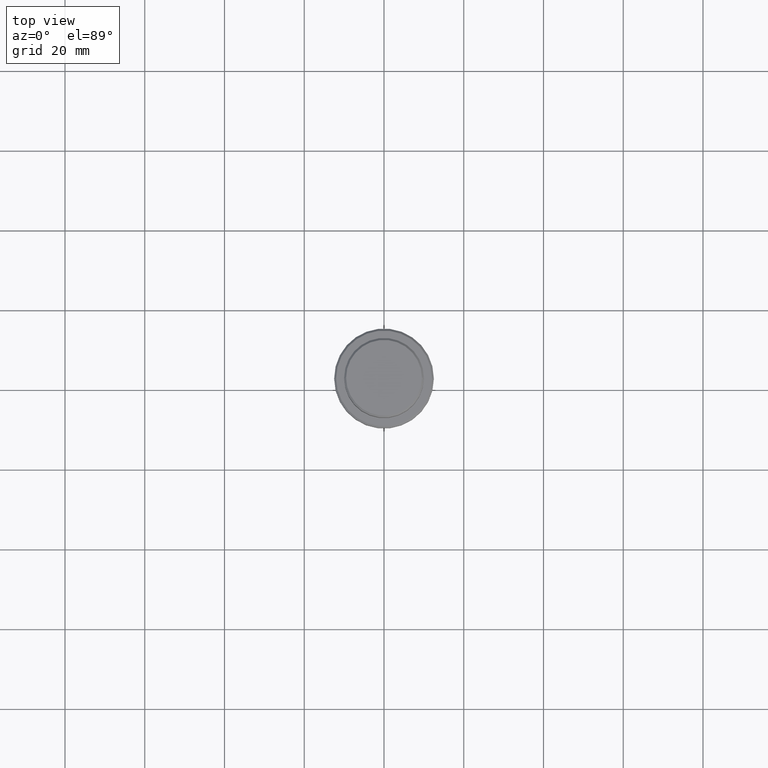
[diagram: clean part render]
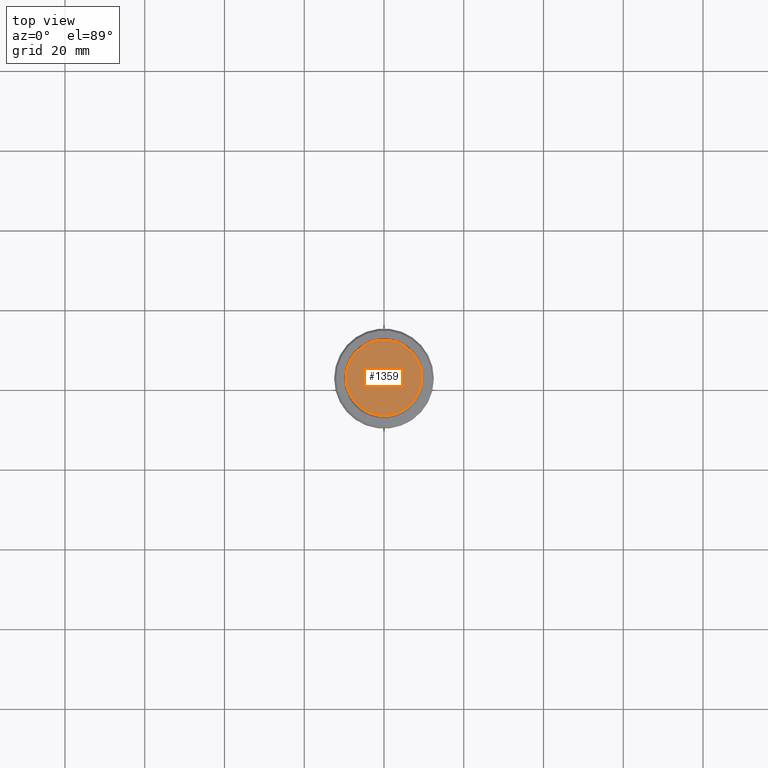
[diagram: same view with one face highlighted and labeled with its STEP entity id]
A machine part, top view. The second image highlights one B-rep face of the part: STEP entity #1359.
In plain terms, the highlighted planar face has unit normal (0, -0, 1).
Its self-contained STEP definition (entity closure, byte-faithful):
#75 = DIRECTION ( 'NONE',  ( -0.000000000000000000, -0.000000000000000000, 1.000000000000000000 ) ) ;
#77 = CARTESIAN_POINT ( 'NONE',  ( 9.500000000000008882, 1.194030629168669864E-15, 0.000000000000000000 ) ) ;
#83 = AXIS2_PLACEMENT_3D ( 'NONE', #1341, #765, #1215 ) ;
#197 = CIRCLE ( 'NONE', #1342, 9.500000000000008882 ) ;
#259 = ORIENTED_EDGE ( 'NONE', *, *, #1251, .T. ) ;
#291 = DIRECTION ( 'NONE',  ( 1.000000000000000000, 0.000000000000000000, 0.000000000000000000 ) ) ;
#472 = CARTESIAN_POINT ( 'NONE',  ( 0.000000000000000000, 0.000000000000000000, 0.000000000000000000 ) ) ;
#500 = DIRECTION ( 'NONE',  ( 1.000000000000000000, 0.000000000000000000, 0.000000000000000000 ) ) ;
#512 = CARTESIAN_POINT ( 'NONE',  ( -9.500000000000008882, 0.000000000000000000, 0.000000000000000000 ) ) ;
#525 = VERTEX_POINT ( 'NONE', #512 ) ;
#560 = AXIS2_PLACEMENT_3D ( 'NONE', #472, #694, #291 ) ;
#595 = VERTEX_POINT ( 'NONE', #77 ) ;
#693 = EDGE_LOOP ( 'NONE', ( #959, #259 ) ) ;
#694 = DIRECTION ( 'NONE',  ( 0.000000000000000000, -0.000000000000000000, 1.000000000000000000 ) ) ;
#765 = DIRECTION ( 'NONE',  ( -0.000000000000000000, -0.000000000000000000, 1.000000000000000000 ) ) ;
#959 = ORIENTED_EDGE ( 'NONE', *, *, #1028, .T. ) ;
#1028 = EDGE_CURVE ( 'NONE', #525, #595, #197, .T. ) ;
#1130 = FACE_OUTER_BOUND ( 'NONE', #693, .T. ) ;
#1142 = PLANE ( 'NONE',  #560 ) ;
#1215 = DIRECTION ( 'NONE',  ( 1.000000000000000000, 0.000000000000000000, 0.000000000000000000 ) ) ;
#1251 = EDGE_CURVE ( 'NONE', #595, #525, #1301, .T. ) ;
#1253 = CARTESIAN_POINT ( 'NONE',  ( 0.000000000000000000, 0.000000000000000000, 0.000000000000000000 ) ) ;
#1301 = CIRCLE ( 'NONE', #83, 9.500000000000008882 ) ;
#1341 = CARTESIAN_POINT ( 'NONE',  ( 0.000000000000000000, 0.000000000000000000, 0.000000000000000000 ) ) ;
#1342 = AXIS2_PLACEMENT_3D ( 'NONE', #1253, #75, #500 ) ;
#1359 = ADVANCED_FACE ( 'NONE', ( #1130 ), #1142, .T. ) ;